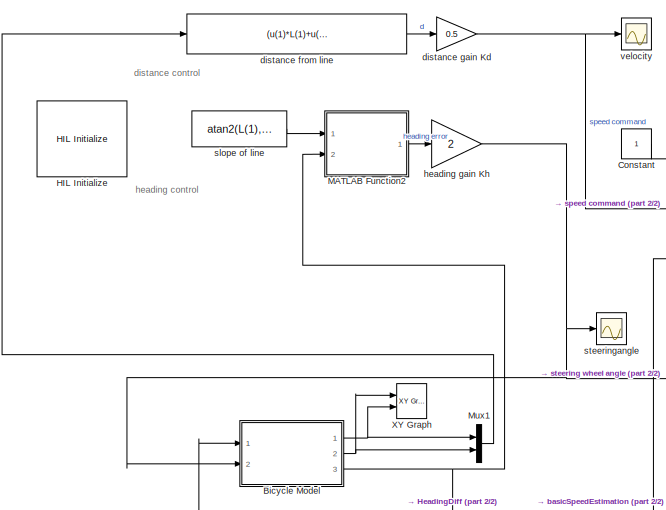
[diagram: root canvas - part 1/2, top left region]
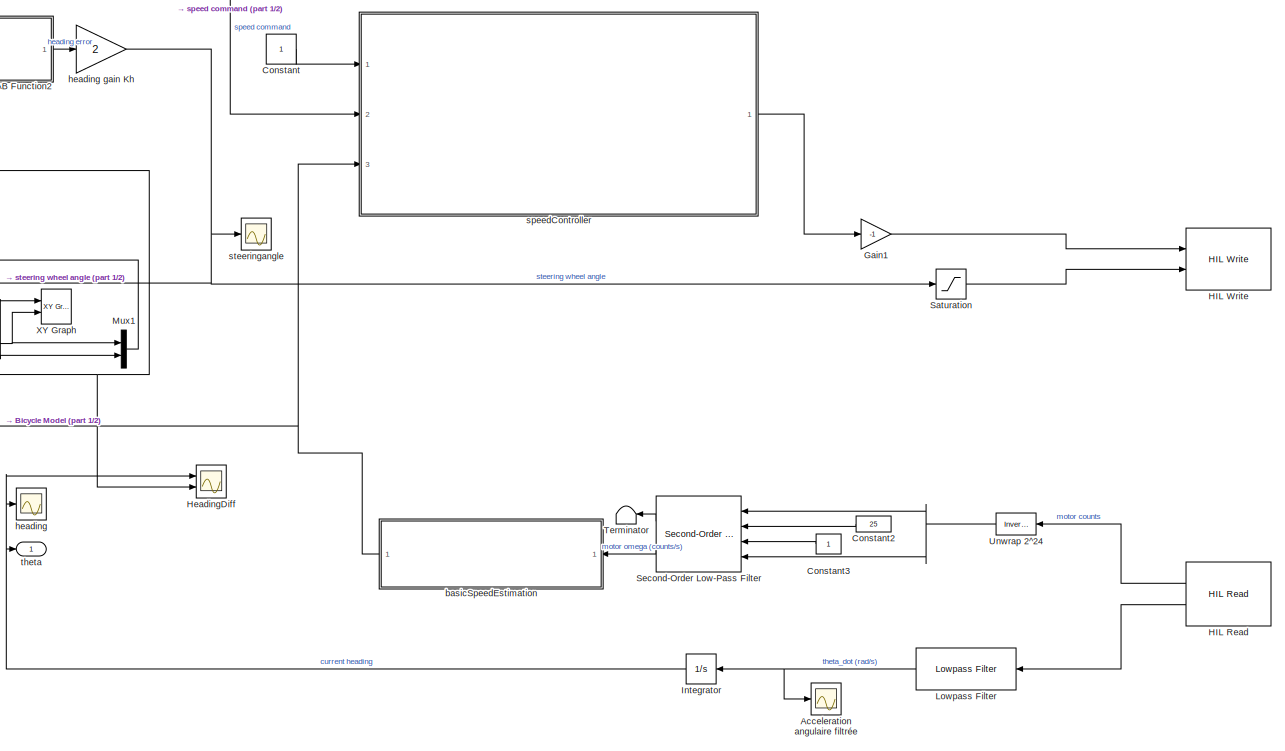
[diagram: root canvas - part 2/2, most of the canvas]
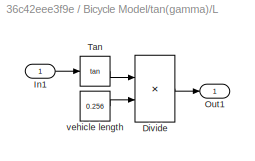
MODEL slx_36c42eee3f9e
KIND model
CONFIG AbsTol = auto
CONFIG EnableMultiTasking = on
CONFIG FixedStep = 0.002
CONFIG InitFcn = if exist('x0')\n  assert(length(x0)==3, 'x0 must be a 3 vector');\nelse\n  x0 = [5 5 0];\n  msgbox(sprintf('x0 not defined in workspace, setting it to [%g %g %g]\n', x0));\nend\nif exist('xg')\n  assert(length(xg)==2, 'xg must be a 2 vector');\nelse\n  xg = [0 0];\n  msgbox(sprintf('xg not defined in workspace, setting it to [%g %g]\n', xg));\nend\n% clean up old vehicle icons\nset(0, 'ShowHiddenHandles', 'on'...<+81ch>
CONFIG MaxStep = auto
CONFIG MinStep = auto
CONFIG RelTol = 1e-3
CONFIG SampleTimeConstraint = Unconstrained
CONFIG SolverName = FixedStepAuto
CONFIG StartTime = 0.0
CONFIG StopFcn = % update the XY scope\nif exist('out')\n % come here if running interactively, the output variable has been\n % saved to the workspace\n  set(0, 'ShowHiddenHandles', 'on')\n  fig = findobj('name', 'XY');\n  ax = findobj(fig, 'type', 'axes');\n  axes(ax);\n  grid on\n  hold on\n  plot_vehicle(x0, 'r', 'Tag', 'vehicle')  \n  plot_vehicle(out.y(end,:), 'b', 'Tag', 'vehicle')\n  hold off\n  set(0, 'ShowHiddenHandl...<+15ch>
CONFIG StopTime = inf
BLOCK [Scope] Acceleration angulaire filtrée
  Floating = off
  NumInputPorts = 1
  Ports = [1]
  ScopeSpecificationString = Simulink.scopes.TimeScopeBlockCfg('CurrentConfiguration', extmgr.ConfigurationSet(extmgr.Configuration('Core','General UI',true),extmgr.Configuration('Core','Source UI',true),extmgr.Configuration('Sources','WiredSimulink',true,'DataLoggingVariableName','ScopeData2'),extmgr.Configuration('Visuals','Time Domain',true,'SerializedDisplays',{struct('MinYLimReal','-0.00362','MaxYLimReal','0.00366','YLab...<+1473ch>
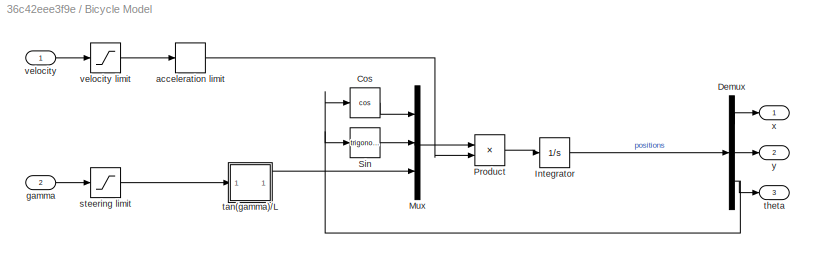
BLOCK [SubSystem] Bicycle Model
  Ports = [2, 3]
  RequestExecContextInheritance = off
BLOCK [Trigonometry] Bicycle Model/Cos
  Operator = cos
  Ports = [1, 1]
BLOCK [Demux] Bicycle Model/Demux
  Outputs = 3
  Ports = [1, 3]
BLOCK [Integrator] Bicycle Model/Integrator
  InitialCondition = x0
  Ports = [1, 1]
BLOCK [Mux] Bicycle Model/Mux
  DisplayOption = bar
  Inputs = 3
  Ports = [3, 1]
BLOCK [Product] Bicycle Model/Product
  Ports = [2, 1]
BLOCK [Trigonometry] Bicycle Model/Sin
  Ports = [1, 1]
BLOCK [RateLimiter] Bicycle Model/acceleration limit
  FallingSlewLimit = -0.5
  RisingSlewLimit = 0.5
  SampleTimeMode = inherited
BLOCK [Inport] Bicycle Model/gamma
  Port = 2
BLOCK [Saturate] Bicycle Model/steering limit
BLOCK [SubSystem] Bicycle Model/tan(gamma)//L
  Ports = [1, 1]
  RequestExecContextInheritance = off
BLOCK [Product] Bicycle Model/tan(gamma)//L/Divide
  Inputs = */
  Ports = [2, 1]
BLOCK [Inport] Bicycle Model/tan(gamma)//L/In1
BLOCK [Outport] Bicycle Model/tan(gamma)//L/Out1
BLOCK [Trigonometry] Bicycle Model/tan(gamma)//L/Tan
  Operator = tan
  Ports = [1, 1]
BLOCK [Constant] Bicycle Model/tan(gamma)//L/vehicle length
  Value = 0.256
BLOCK [Outport] Bicycle Model/theta
  Port = 3
BLOCK [Inport] Bicycle Model/velocity
BLOCK [Saturate] Bicycle Model/velocity limit
  LowerLimit = -0.2
  UpperLimit = 0.2
BLOCK [Outport] Bicycle Model/x
BLOCK [Outport] Bicycle Model/y
  Port = 2
BLOCK [Constant] Constant
BLOCK [Constant] Constant2
  Value = 25
BLOCK [Constant] Constant3
BLOCK [Gain] Gain1
  Gain = -1
BLOCK [Reference] HIL Initialize  REF=quarc_library/Data Acquisition/Generic/Configuration/HIL Initialize
  AttributesFormatString = %<object_name> (%<board_type>-%<board_number>)
  Ports = []
  SourceBlock = quarc_library/Data Acquisition/Generic/Configuration/HIL Initialize
  SourceProductName = QUARC Targets
  SourceType = HIL Initialize
  UserDataPersistent = on
BLOCK [Reference] HIL Read  REF=quarc_library/Data Acquisition/Generic/Immediate I//O/HIL Read
  AttributesFormatString = (%<object_name>)
  NameLocation = top
  Ports = [0, 2]
  SourceBlock = quarc_library/Data Acquisition/Generic/Immediate I//O/HIL Read
  SourceProductName = QUARC Targets
  SourceType = HIL Read
  UserDataPersistent = on
BLOCK [Reference] HIL Write  REF=quarc_library/Data Acquisition/Generic/Immediate I//O/HIL Write
  AttributesFormatString = (%<object_name>)
  Ports = [2]
  SourceBlock = quarc_library/Data Acquisition/Generic/Immediate I//O/HIL Write
  SourceProductName = QUARC Targets
  SourceType = HIL Write
  UserDataPersistent = on
BLOCK [Scope] HeadingDiff
  Floating = off
  NumInputPorts = 2
  Ports = [2]
  ScopeSpecificationString = Simulink.scopes.TimeScopeBlockCfg('CurrentConfiguration', extmgr.ConfigurationSet(extmgr.Configuration('Core','General UI',true),extmgr.Configuration('Core','Source UI',true),extmgr.Configuration('Sources','WiredSimulink',true,'DataLoggingVariableName','ScopeData1'),extmgr.Configuration('Visuals','Time Domain',true,'SerializedDisplays',{struct('MinYLimReal','-0.17118','MaxYLimReal','0.89053','YLab...<+1472ch>
BLOCK [Integrator] Integrator
  NameLocation = top
  Ports = [1, 1]
BLOCK [Reference] Lowpass Filter  REF=dspfdesign/Lowpass Filter
  NameLocation = top
  Ports = [1, 1]
  SourceBlock = dspfdesign/Lowpass Filter
  SourceProductBaseCode = DS
  SourceType = dsp.LowpassFilter
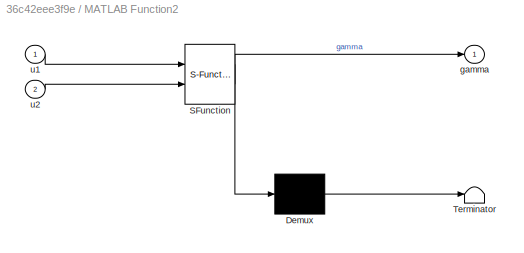
BLOCK [SubSystem] MATLAB Function2
  ErrorFcn = Stateflow.Translate.translate
  PermitHierarchicalResolution = ExplicitOnly
  Ports = [2, 1]
  RequestExecContextInheritance = off
  SFBlockType = MATLAB Function
  TreatAsAtomicUnit = on
BLOCK [Demux] MATLAB Function2/ Demux 
  Outputs = 1
  Ports = [1, 1]
BLOCK [S-Function] MATLAB Function2/ SFunction 
  EnableBusSupport = on
  FunctionName = sf_sfun
  PortCounts = [2 2]
  Ports = [2, 2]
  SFcnIsStateOwnerBlock = off
  SFunctionDeploymentMode = off
  Tag = Stateflow S-Function 3
BLOCK [Terminator] MATLAB Function2/ Terminator 
BLOCK [Outport] MATLAB Function2/gamma
BLOCK [Inport] MATLAB Function2/u1
BLOCK [Inport] MATLAB Function2/u2
  Port = 2
BLOCK [Mux] Mux1
  DisplayOption = bar
  Inputs = 2
  Ports = [2, 1]
BLOCK [Saturate] Saturation
BLOCK [Reference] Second-Order Low-Pass Filter  REF=quarc_library/Continuous/Second-Order
Low-Pass Filter
  Ports = [4, 2]
  SourceBlock = quarc_library/Continuous/Second-Order\nLow-Pass Filter
  SourceProductName = QUARC Targets
  SourceType = Second-Order Low-Pass Filter
BLOCK [Terminator] Terminator
  NameLocation = top
BLOCK [Reference] Unwrap 2^24  REF=quarc_library/Discontinuities/Inverse
Modulus
  Ports = [1, 1]
  SourceBlock = quarc_library/Discontinuities/Inverse\nModulus
  SourceProductName = QUARC Targets
  SourceType = Inverse Modulus
BLOCK [Reference] XY Graph  REF=simulink/Sinks/XY Graph
  Ports = [2]
  SourceBlock = simulink/Sinks/XY Graph
  SourceProductBaseCode = SL
  SourceType = XY scope.
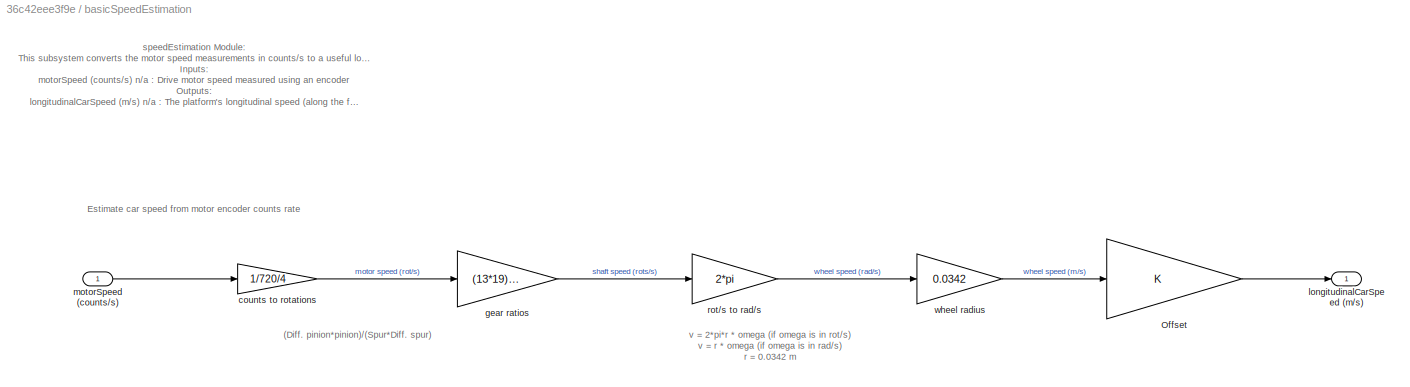
BLOCK [SubSystem] basicSpeedEstimation
  Ports = [1, 1]
  RequestExecContextInheritance = off
BLOCK [Gain] basicSpeedEstimation/Offset
BLOCK [Gain] basicSpeedEstimation/counts to rotations
  Gain = 1/720/4
BLOCK [Gain] basicSpeedEstimation/gear ratios
  Gain = (13*19)/(70*37)
BLOCK [Outport] basicSpeedEstimation/longitudinalCarSpeed (m//s)
  VectorParamsAs1DForOutWhenUnconnected = off
BLOCK [Inport] basicSpeedEstimation/motorSpeed (counts//s)
BLOCK [Gain] basicSpeedEstimation/rot//s to rad//s
  Gain = 2*pi
BLOCK [Gain] basicSpeedEstimation/wheel radius
  Gain = 0.0342
BLOCK [Fcn] distance from line
  Expr = (u(1)*L(1)+u(2)*L(2)+L(3))/sqrt(L(1)^2+L(2)^2)
BLOCK [Gain] distance gain Kd
  Gain = 0.5
BLOCK [Scope] heading 
  Floating = off
  NumInputPorts = 1
  Ports = [1]
  ScopeSpecificationString = Simulink.scopes.TimeScopeBlockCfg('CurrentConfiguration', extmgr.ConfigurationSet(extmgr.Configuration('Core','General UI',true),extmgr.Configuration('Core','Source UI',true),extmgr.Configuration('Sources','WiredSimulink',true,'DataLoggingSaveFormat','StructureWithTime','DataLoggingLimitDataPoints',true,'DataLoggingDecimation','1','DataLoggingVariableName','ScopeData2'),extmgr.Configuration('Visua...<+1710ch>
BLOCK [Gain] heading gain Kh
  Gain = 2
BLOCK [Constant] slope of line
  Value = atan2(L(1),-L(2))
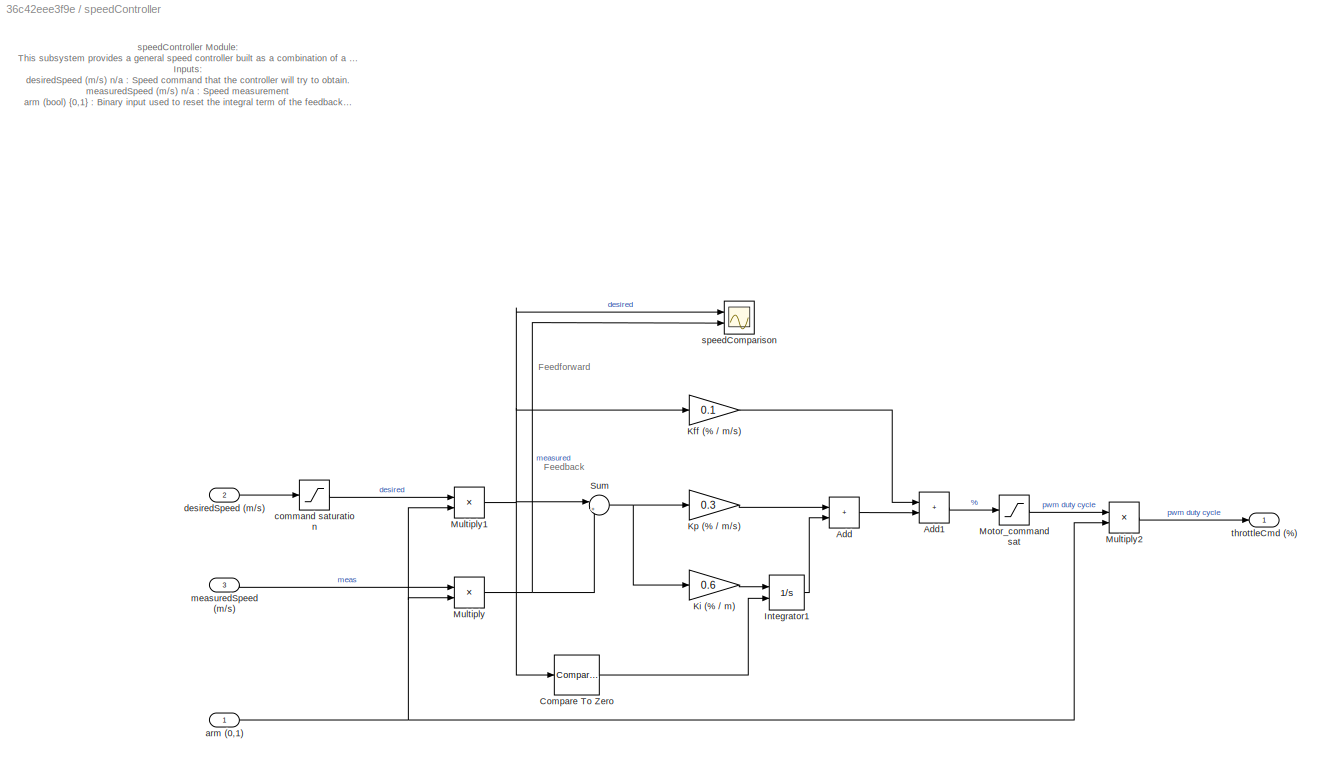
BLOCK [SubSystem] speedController
  Ports = [3, 1]
  RequestExecContextInheritance = off
BLOCK [Sum] speedController/Add
  IconShape = rectangular
  Ports = [2, 1]
BLOCK [Sum] speedController/Add1
  IconShape = rectangular
  Ports = [2, 1]
BLOCK [Reference] speedController/Compare To Zero  REF=simulink/Logic and Bit
Operations/Compare
To Zero
  Ports = [1, 1]
  SourceBlock = simulink/Logic and Bit\nOperations/Compare\nTo Zero
  SourceProductBaseCode = SL
  SourceType = Compare To Zero
BLOCK [Integrator] speedController/Integrator1
  ExternalReset = either
  LimitOutput = on
  LowerSaturationLimit = -0.1
  Ports = [2, 1]
  UpperSaturationLimit = 0.1
BLOCK [Gain] speedController/Kff (% // m//s)
  Gain = 0.1
BLOCK [Gain] speedController/Ki (% // m) 
  Gain = 0.6
BLOCK [Gain] speedController/Kp (% // m//s)
  Gain = 0.3
BLOCK [Saturate] speedController/Motor_command sat
  LinearizeAsGain = off
BLOCK [Product] speedController/Multiply
  Ports = [2, 1]
BLOCK [Product] speedController/Multiply1
  Ports = [2, 1]
BLOCK [Product] speedController/Multiply2
  Ports = [2, 1]
BLOCK [Sum] speedController/Sum
  Inputs = |+-
  Ports = [2, 1]
BLOCK [Inport] speedController/arm (0,1)
BLOCK [Saturate] speedController/command saturation
BLOCK [Inport] speedController/desiredSpeed (m//s)
  Port = 2
BLOCK [Inport] speedController/measuredSpeed (m//s)
  Port = 3
BLOCK [Scope] speedController/speedComparison
  Floating = off
  NumInputPorts = 2
  Ports = [2]
  ScopeSpecificationString = Simulink.scopes.TimeScopeBlockCfg('CurrentConfiguration', extmgr.ConfigurationSet(extmgr.Configuration('Core','General UI',true),extmgr.Configuration('Core','Source UI',true),extmgr.Configuration('Sources','WiredSimulink',true,'DataLoggingVariableName','ScopeData1'),extmgr.Configuration('Visuals','Time Domain',true,'SerializedDisplays',{struct('MinYLimReal','-2','MaxYLimReal','2','YLabelReal','m/s...<+1441ch>
BLOCK [Outport] speedController/throttleCmd (%)
  VectorParamsAs1DForOutWhenUnconnected = off
BLOCK [Scope] steeringangle
  Floating = off
  NumInputPorts = 1
  Ports = [1]
  ScopeSpecificationString = Simulink.scopes.TimeScopeBlockCfg('CurrentConfiguration', extmgr.ConfigurationSet(extmgr.Configuration('Core','General UI',true),extmgr.Configuration('Core','Source UI',true),extmgr.Configuration('Sources','WiredSimulink',true,'DataLoggingVariableName','ScopeData1','DataLoggingSaveFormat','StructureWithTime','DataLoggingDecimation','1'),extmgr.Configuration('Visuals','Time Domain',true,'Serialized...<+1649ch>
BLOCK [Outport] theta
  VectorParamsAs1DForOutWhenUnconnected = off
BLOCK [Scope] velocity
  Floating = off
  NumInputPorts = 1
  Ports = [1]
  ScopeSpecificationString = Simulink.scopes.TimeScopeBlockCfg('CurrentConfiguration', extmgr.ConfigurationSet(extmgr.Configuration('Core','General UI',true),extmgr.Configuration('Core','Source UI',true),extmgr.Configuration('Sources','WiredSimulink',true,'DataLoggingVariableName','ScopeData1','DataLoggingSaveFormat','StructureWithTime','DataLoggingDecimation','1'),extmgr.Configuration('Visuals','Time Domain',true,'Serialized...<+1593ch>
ANNOTATION (root): distance control
ANNOTATION (root): heading control
ANNOTATION basicSpeedEstimation: (Diff. pinion*pinion)/(Spur*Diff. spur)
ANNOTATION basicSpeedEstimation: speedEstimation Module: This subsystem converts the motor speed measurements in counts/s to a useful longitudinal car speed in m/s. Inputs: motorSpeed (counts/s) n/a : Drive motor speed measured using an encoder Outputs: longitudinalCarSpeed (m/s) n/a : The platform's longitudinal speed (along the front-rear axis direction)
ANNOTATION basicSpeedEstimation: Estimate car speed from motor encoder counts rate
ANNOTATION basicSpeedEstimation: v = 2*pi*r * omega (if omega is in rot/s) v = r * omega (if omega is in rad/s) r = 0.0342 m
ANNOTATION speedController: speedController Module: This subsystem provides a general speed controller built as a combination of a feedforward and feedback controllers. Inputs: desiredSpeed (m/s) n/a : Speed command that the controller will try to obtain. measuredSpeed (m/s) n/a : Speed measurement arm (bool) {0,1} : Binary input used to reset the integral term of the feedback controller Outputs: throttleCmd (%) n/a : Percen...<+289ch>
ANNOTATION speedController: Feedback
ANNOTATION speedController: Feedforward
LINE Bicycle Model/Cos:1 -> Bicycle Model/Mux:1
LINE Bicycle Model/Demux:1 -> Bicycle Model/x:1
LINE Bicycle Model/Demux:2 -> Bicycle Model/y:1
NET Bicycle Model/Demux:3 -> Bicycle Model/Cos:1, Bicycle Model/Sin:1, Bicycle Model/theta:1
LINE Bicycle Model/Integrator:1 -> Bicycle Model/Demux:1
LINE Bicycle Model/Mux:1 -> Bicycle Model/Product:1
LINE Bicycle Model/Product:1 -> Bicycle Model/Integrator:1
LINE Bicycle Model/Sin:1 -> Bicycle Model/Mux:2
LINE Bicycle Model/acceleration limit:1 -> Bicycle Model/Product:2
LINE Bicycle Model/gamma:1 -> Bicycle Model/steering limit:1
LINE Bicycle Model/steering limit:1 -> Bicycle Model/tan(gamma)//L:1
LINE Bicycle Model/tan(gamma)//L/Divide:1 -> Bicycle Model/tan(gamma)//L/Out1:1
LINE Bicycle Model/tan(gamma)//L/In1:1 -> Bicycle Model/tan(gamma)//L/Tan:1
LINE Bicycle Model/tan(gamma)//L/Tan:1 -> Bicycle Model/tan(gamma)//L/Divide:1
LINE Bicycle Model/tan(gamma)//L/vehicle length:1 -> Bicycle Model/tan(gamma)//L/Divide:2
LINE Bicycle Model/tan(gamma)//L:1 -> Bicycle Model/Mux:3
LINE Bicycle Model/velocity limit:1 -> Bicycle Model/acceleration limit:1
LINE Bicycle Model/velocity:1 -> Bicycle Model/velocity limit:1
NET Bicycle Model:1 -> Mux1:1, XY Graph:2
NET Bicycle Model:2 -> Mux1:2, XY Graph:1
NET Bicycle Model:3 -> HeadingDiff:2, MATLAB Function2:2
LINE Constant2:1 -> Second-Order Low-Pass Filter:2
LINE Constant3:1 -> Second-Order Low-Pass Filter:3
LINE Constant:1 -> speedController:1
LINE Gain1:1 -> HIL Write:1
LINE HIL Read:1 -> Unwrap 2^24:1
LINE HIL Read:2 -> Lowpass Filter:1
NET Integrator:1 -> HeadingDiff:1, heading :1, theta:1
NET Lowpass Filter:1 -> Acceleration angulaire filtrée:1, Integrator:1
LINE MATLAB Function2:1 -> heading gain Kh:1
LINE Mux1:1 -> distance from line:1
LINE Saturation:1 -> HIL Write:2
LINE Second-Order Low-Pass Filter:1 -> Terminator:1
LINE Second-Order Low-Pass Filter:2 -> basicSpeedEstimation:1
NET Unwrap 2^24:1 -> Second-Order Low-Pass Filter:1, Second-Order Low-Pass Filter:4
LINE basicSpeedEstimation/Offset:1 -> basicSpeedEstimation/longitudinalCarSpeed (m//s):1
LINE basicSpeedEstimation/counts to rotations:1 -> basicSpeedEstimation/gear ratios:1
LINE basicSpeedEstimation/gear ratios:1 -> basicSpeedEstimation/rot//s to rad//s:1
LINE basicSpeedEstimation/motorSpeed (counts//s):1 -> basicSpeedEstimation/counts to rotations:1
LINE basicSpeedEstimation/rot//s to rad//s:1 -> basicSpeedEstimation/wheel radius:1
LINE basicSpeedEstimation/wheel radius:1 -> basicSpeedEstimation/Offset:1
NET basicSpeedEstimation:1 -> Bicycle Model:1, speedController:3
LINE distance from line:1 -> distance gain Kd:1
NET distance gain Kd:1 -> speedController:2, velocity:1
NET heading gain Kh:1 -> Bicycle Model:2, Saturation:1, steeringangle:1
LINE slope of line:1 -> MATLAB Function2:1
LINE speedController/Add1:1 -> speedController/Motor_command sat:1
LINE speedController/Add:1 -> speedController/Add1:2
LINE speedController/Compare To Zero:1 -> speedController/Integrator1:2
LINE speedController/Integrator1:1 -> speedController/Add:2
LINE speedController/Kff (% // m//s):1 -> speedController/Add1:1
LINE speedController/Ki (% // m) :1 -> speedController/Integrator1:1
LINE speedController/Kp (% // m//s):1 -> speedController/Add:1
LINE speedController/Motor_command sat:1 -> speedController/Multiply2:1
NET speedController/Multiply1:1 -> speedController/Compare To Zero:1, speedController/Kff (% // m//s):1, speedController/Sum:1, speedController/speedComparison:1
LINE speedController/Multiply2:1 -> speedController/throttleCmd (%):1
NET speedController/Multiply:1 -> speedController/Sum:2, speedController/speedComparison:2
NET speedController/Sum:1 -> speedController/Ki (% // m) :1, speedController/Kp (% // m//s):1
NET speedController/arm (0,1):1 -> speedController/Multiply1:2, speedController/Multiply2:2, speedController/Multiply:2
LINE speedController/command saturation:1 -> speedController/Multiply1:1
LINE speedController/desiredSpeed (m//s):1 -> speedController/command saturation:1
LINE speedController/measuredSpeed (m//s):1 -> speedController/Multiply:1
LINE speedController:1 -> Gain1:1
note: NET lines group one-source signal fan-out (src -> all destinations, sorted); 1:1 wires keep LINE
CHART MATLAB Function2 states=1 transitions=1
  STATE_LABEL 'eML_blk_kernel()'
  STATE_LABEL 'SCRIPT:\nfunction gamma = gammaGoal(u1, u2)\n\ngamma = angdiff(u2, u1);\n'
CHART  states=0 transitions=0
